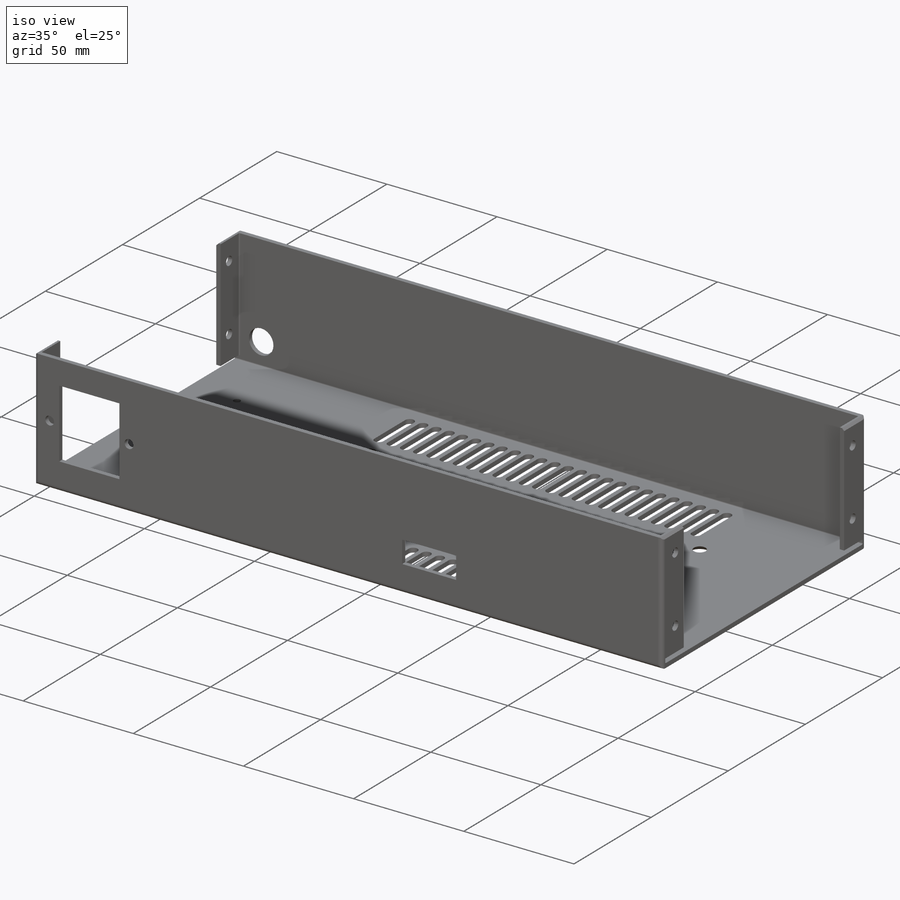
[diagram: iso view]
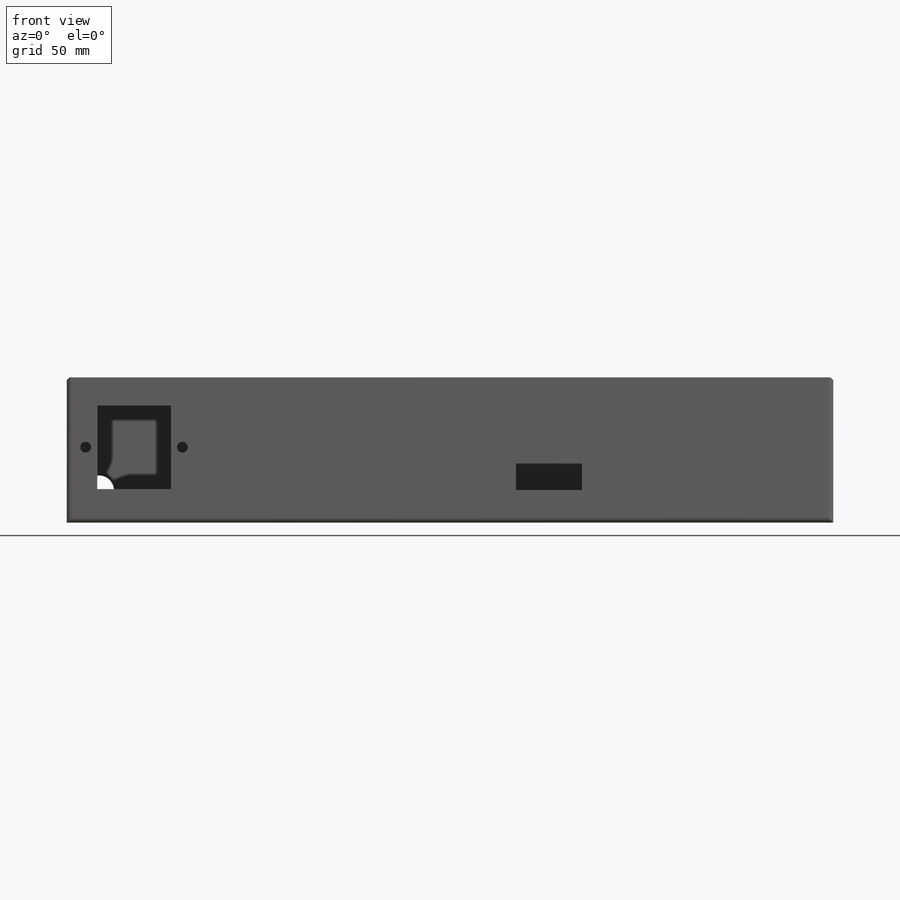
[diagram: front view]
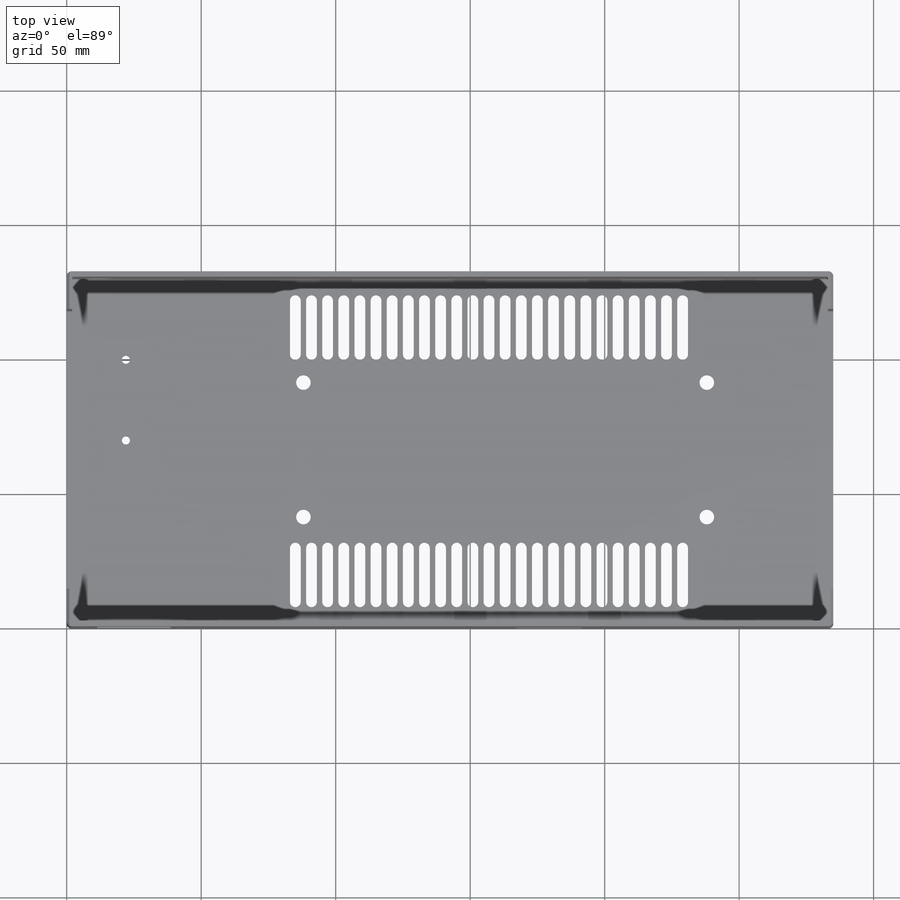
[diagram: top view]
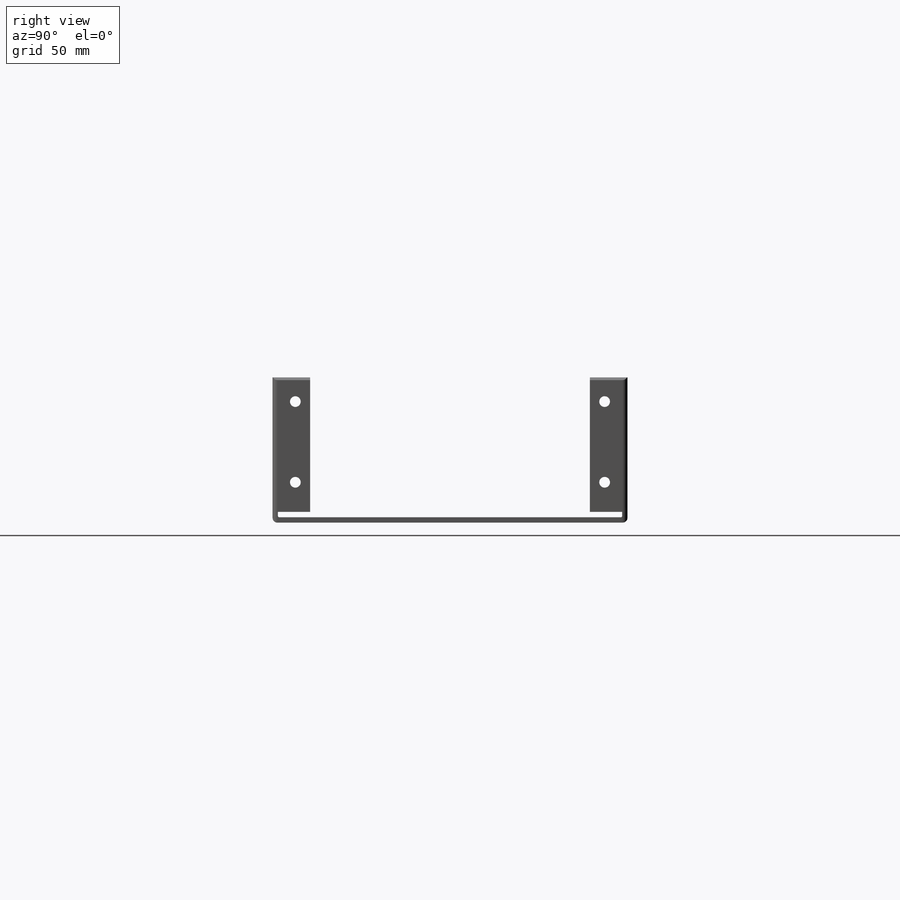
[diagram: right view]
SOLIDWORKS PART (.sldprt)
format: sldprt  version: not decoded by parser v0  size: 578,560 bytes
history: native  units: mm
features: sketch x10, cut_extrude x5, extrude x3, fillet x2, material x1, hole x1, pattern_linear x1, chamfer x1 (+11 scaffold rows collapsed)
feature tree (35):
  scaffold x11  (default folders/planes/origin — collapsed)
  material  "Material <not specified>"
  sketch  "Sketch1"  dims[D1=132.0mm D2=285.0mm]
  extrude  "Boss-Extrude1"  Depth=2mm
  sketch  "Sketch2"  dims[D1=2.0mm]
  extrude  "Boss-Extrude2"  Depth=52mm
  sketch  "Sketch3"  dims[D1=2.0mm D2=12.0mm]
  extrude  "Boss-Extrude3"  Depth=50mm
  sketch  "Sketch4"  dims[D5=4.0mm D1=5.5mm D2=5.5mm D3=15.0mm D4=45.0mm]
  cut_extrude  "Cut-Extrude1"  [1 undecoded]
  sketch  "Sketch5"  dims[D3=4.0mm D1=36.0mm D2=27.3mm D4=28.0mm D5=7.0mm D6=31.1mm D7=22.0mm D8=12.0mm D9=93.5mm D10=118.0mm]
  cut_extrude  "Cut-Extrude2"  Depth=5mm
  sketch  "Sketch6"  dims[D7=3.0mm D8=4.0mm D1=150.0mm D2=50.0mm D3=41.5mm D4=70.0mm D5=100.0mm D6=22.0mm D9=88.0mm]
  cut_extrude  "Cut-Extrude3"  Depth=5mm
  hole  "CSK for M4 Flat Head Machine Screw1"  Diameter=4.5mm Depth=54mm
  sketch  "Sketch8"
  sketch  "Sketch7"  dims[hole-wizard template sketch: 55 standard entries collapsed; hole parameters kept: c17.Thru Hole Depth=54.0mm c17.Near C'Sink Dia.=9.4mm c17.D4=~3.666174mm c17.Near C'Sink Angle=90.0deg]
  sketch  "Sketch9"  dims[D3=11.1125mm D1=12.0mm D2=12.0mm]
  cut_extrude  "Cut-Extrude4"  Depth=5mm
  sketch  "Sketch10"  dims[D1=85.0mm D2=10.0mm D3=20.0mm D4=10.0mm D5=4.0mm]
  cut_extrude  "Cut-Extrude5"  Depth=5mm
  pattern_linear  "LPattern1"  Count1=25 Count2=1 Spacing1=6mm Spacing2=10mm
  fillet  "Fillet1"  Radius=0.5mm
  fillet  "Fillet2"  Radius=1.8mm
  chamfer  "Chamfer1"  Distance=1mm Angle=45deg
decode coverage: 21 of 23 modeling features carry decoded parameters
note: ~ marks probable driven/reference dimensions
note: 1 parameter value undecoded
note: suppression state not decoded; provenance and decode notes live in map.json
